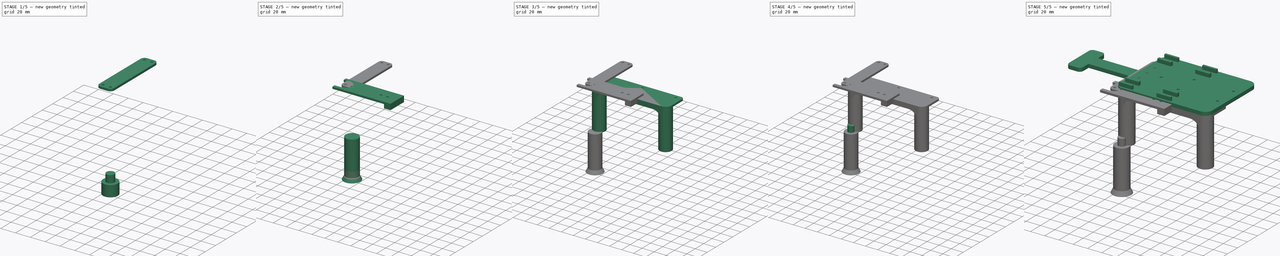
[diagram: build sequence overview — one tinted view per stage of 5, left to right]
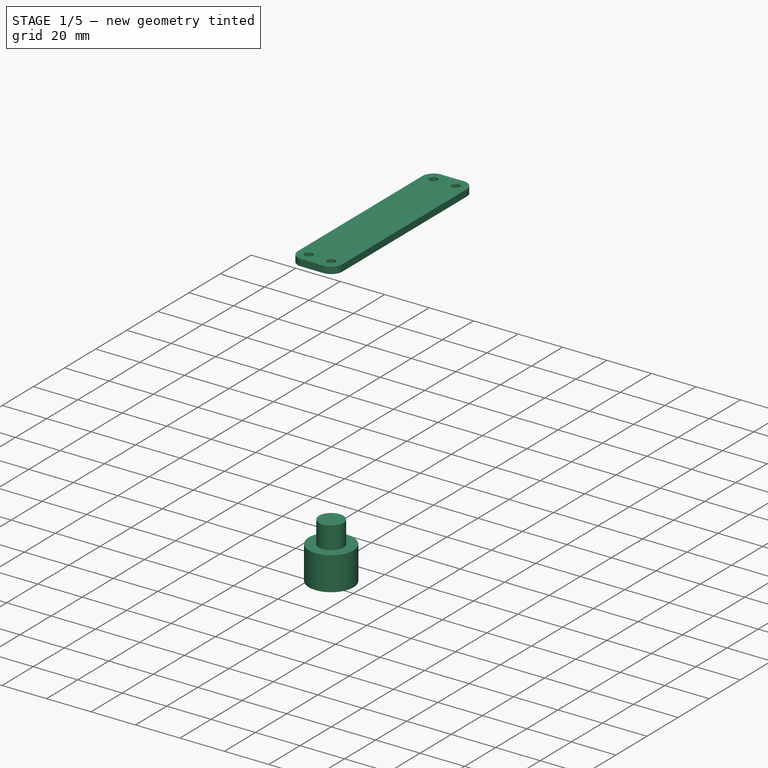
[diagram: stage 1 of 5 — iso view after this stage's code; geometry added in this stage tinted green]
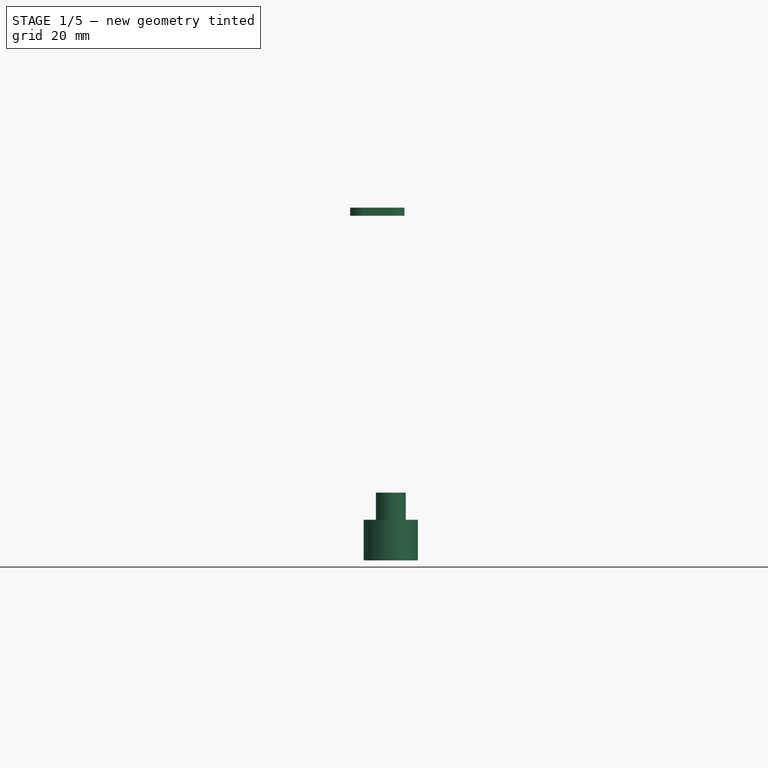
[diagram: stage 1 of 5 — front view after this stage's code; geometry added in this stage tinted green]
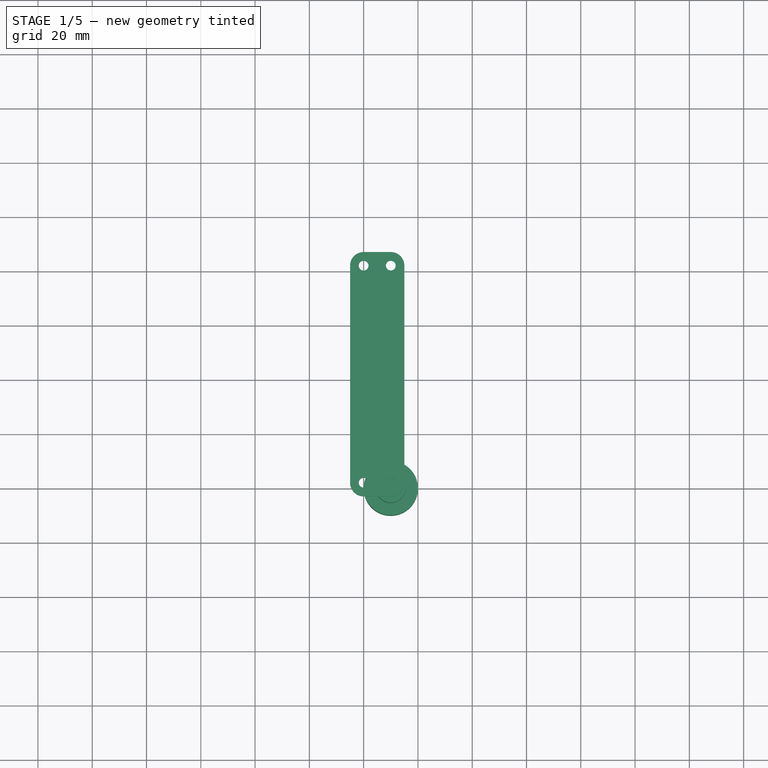
[diagram: stage 1 of 5 — top view after this stage's code; geometry added in this stage tinted green]
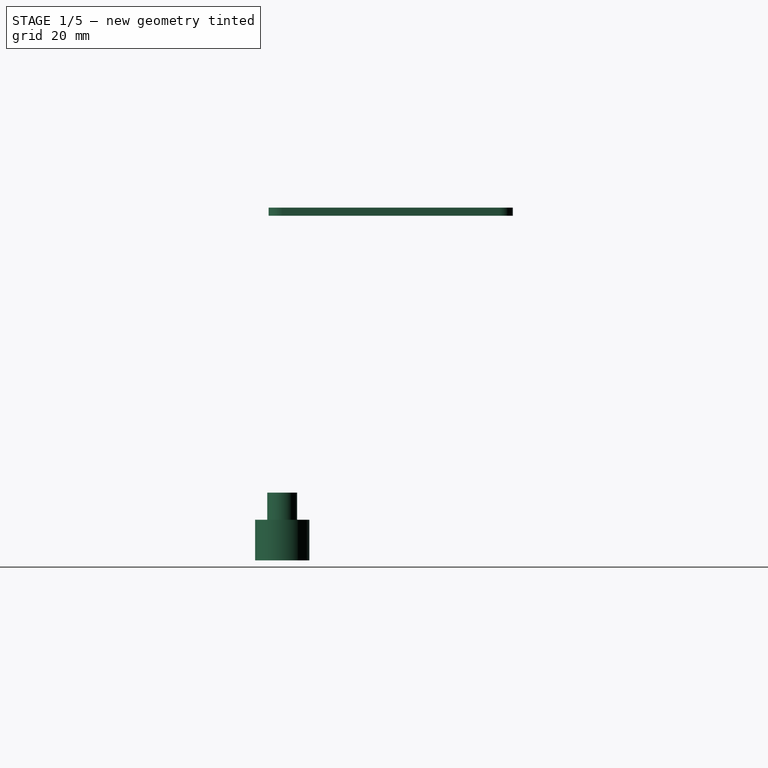
[diagram: stage 1 of 5 — right view after this stage's code; geometry added in this stage tinted green]
FCSTD DOCUMENT  (FreeCAD 1.0R39109 (Git))
Label: Support_long
License: All rights reserved
LicenseURL: http://en.wikipedia.org/wiki/All_rights_reserved
objects: Sketcher::SketchObject×9, PartDesign::Pad×8, PartDesign::Body×7, App::Link×5, PartDesign::AdditiveCylinder×4, PartDesign::SubtractiveCone×3, PartDesign::SubtractiveCylinder×2, PartDesign::Pocket×1, PartDesign::AdditiveCone×1, PartDesign::AdditiveBox×1
note: 85 computed .brp shape members not serialized (recipe doc carries the construction recipe); baked Part::Feature solids carry a one-line shape summary decoded from their .brp

FEATURE [PartDesign::Body] Body004  label="Pusher"
  AllowCompound = false
  Group = -> [Sketch009,Pad007,Box]
  Origin = -> Origin004
  Placement = pos=(120,10,-122) rot=(0,0,1;0rad)
  Tip = -> Box
FEATURE [App::Link] Link004  label="Pusher001"
  LinkPlacement = pos=(120,90,-122) rot=(0,0,1;0rad)
  LinkedObject = -> Body004
  Placement = pos=(120,90,-122) rot=(0,0,1;0rad)
FEATURE [Sketcher::SketchObject] Sketch010
  ArcFitTolerance = 1e-06
  AttachmentSupport = -> [XY_Plane005]
  FullyConstrained = true
  MakeInternals = false
  MapMode = 5
  sketch-geometry (14):
    g0: LineSegment StartX=-5 StartY=80 StartZ=0 EndX=-5 EndY=0 EndZ=0
    g1: LineSegment StartX=-9e-16 StartY=-5 StartZ=0 EndX=10 EndY=-5 EndZ=0
    g2: LineSegment StartX=15 StartY=-1.2e-15 StartZ=0 EndX=15 EndY=80 EndZ=0
    g3: LineSegment StartX=10 StartY=85 StartZ=0 EndX=0 EndY=85 EndZ=0
    g4: ArcOfCircle CenterX=0 CenterY=80 CenterZ=0 NormalX=0 NormalY=0 NormalZ=1 AngleXU=0 Radius=5 StartAngle=1.5708 EndAngle=3.14159
    g5: ArcOfCircle CenterX=0 CenterY=0 CenterZ=0 NormalX=0 NormalY=0 NormalZ=1 AngleXU=0 Radius=5 StartAngle=3.14159 EndAngle=4.71239
    g6: ArcOfCircle CenterX=10 CenterY=0 CenterZ=0 NormalX=0 NormalY=0 NormalZ=1 AngleXU=0 Radius=5 StartAngle=4.71239 EndAngle=6.28319
    g7: ArcOfCircle CenterX=10 CenterY=80 CenterZ=0 NormalX=0 NormalY=0 NormalZ=1 AngleXU=0 Radius=5 StartAngle=1e-16 EndAngle=1.5708
    g8: GeomPoint [constr] X=-5 Y=85 Z=0
    g9: GeomPoint [constr] X=15 Y=-5 Z=0
    g10: Circle CenterX=10 CenterY=80 CenterZ=0 NormalX=0 NormalY=0 NormalZ=1 AngleXU=0 Radius=1.8
    g11: Circle CenterX=0 CenterY=80 CenterZ=0 NormalX=0 NormalY=0 NormalZ=1 AngleXU=0 Radius=1.8
    g12: Circle CenterX=0 CenterY=0 CenterZ=0 NormalX=0 NormalY=0 NormalZ=1 AngleXU=0 Radius=1.8
    g13: Circle CenterX=10 CenterY=0 CenterZ=0 NormalX=0 NormalY=0 NormalZ=1 AngleXU=0 Radius=1.8
  constraints (32):
    c: Tangent(g0,g4) = -1.5708
    c: Tangent(g0,g5) = -1.5708
    c: Tangent(g1,g5) = -1.5708
    c: Tangent(g1,g6) = -1.5708
    c: Tangent(g2,g6) = -1.5708
    c: Tangent(g2,g7) = -1.5708
    c: Tangent(g3,g7) = -1.5708
    c: Tangent(g3,g4) = -1.5708
    c: Vertical(g0)
    c: Vertical(g2)
    c: Horizontal(g1)
    c: Horizontal(g3)
    c: Equal(g4,g5)
    c: Equal(g5,g6)
    c: Equal(g6,g7)
    c: PointOnObject(g8,g0)
    c: PointOnObject(g8,g3)
    c: PointOnObject(g9,g1)
    c: PointOnObject(g9,g2)
    c: Radius(g7) = 5
    c: DistanceX(g4,g7) = 10
    c: DistanceY(g6,g7) = 80
    c: DistanceX(g5) = 0
    c: DistanceY(g5) = 0
    c: Coincident(g10,g7)
    c: Coincident(g11,g4)
    c: Coincident(g12,g5)
    c: Coincident(g13,g6)
    c: Equal(g10,g11)
    c: Equal(g11,g12)
    c: Equal(g12,g13)
    c: Radius(g10) = 1.8
FEATURE [PartDesign::Pad] Pad008
  Direction = (0,0,1)
  Length = 3
  Length2 = 10
  Profile = -> Sketch010
  ReferenceAxis = -> Sketch010 [N_Axis]
  Suppressed = false
  Type = 0
FEATURE [PartDesign::Body] Body005  label="Cross"
  AllowCompound = false
  Group = -> [Sketch010,Pad008]
  Origin = -> Origin005
  Placement = pos=(195,10,-125) rot=(0,0,1;0rad)
  Tip = -> Pad008
FEATURE [PartDesign::AdditiveCylinder] Cylinder003
  Angle = 360
  AttacherType = Attacher::AttachEngine3D
  AttachmentOffset = pos=(10,0,-127) rot=(0,0,1;1.5708rad)
  AttachmentSupport = -> [XY_Plane006]
  FirstAngle = 0
  Height = 15
  MapMode = 5
  Placement = pos=(10,0,-127) rot=(0,0,1;1.5708rad)
  Radius = 10
  SecondAngle = 0
  Suppressed = false
FEATURE [PartDesign::AdditiveCylinder] Cylinder004
  Angle = 360
  AttacherType = Attacher::AttachEngine3D
  AttachmentOffset = pos=(10,0,-112) rot=(0,0,1;0rad)
  AttachmentSupport = -> [XY_Plane006]
  BaseFeature = -> Cylinder003
  FirstAngle = 0
  Height = 10
  MapMode = 5
  Placement = pos=(10,0,-112) rot=(0,0,1;0rad)
  Radius = 5.5
  SecondAngle = 0
  Suppressed = false
FEATURE [PartDesign::SubtractiveCylinder] Cylinder005
  Angle = 360
  AttacherType = Attacher::AttachEngine3D
  AttachmentOffset = pos=(10,0,-127) rot=(0,0,1;0rad)
  AttachmentSupport = -> [XY_Plane006]
  BaseFeature = -> Cylinder004
  FirstAngle = 0
  Height = 11
  MapMode = 5
  Placement = pos=(10,0,-127) rot=(0,0,1;0rad)
  Radius = 5.5
  SecondAngle = 0
  Suppressed = false
FEATURE [PartDesign::Body] Body006  label="Segment"
  AllowCompound = false
  Group = -> [Cylinder003,Cylinder004,Cylinder005]
  Origin = -> Origin006
  Placement = pos=(10,2.2e-15,-1) rot=(0,0,1;1.5708rad)
  Tip = -> Cylinder005
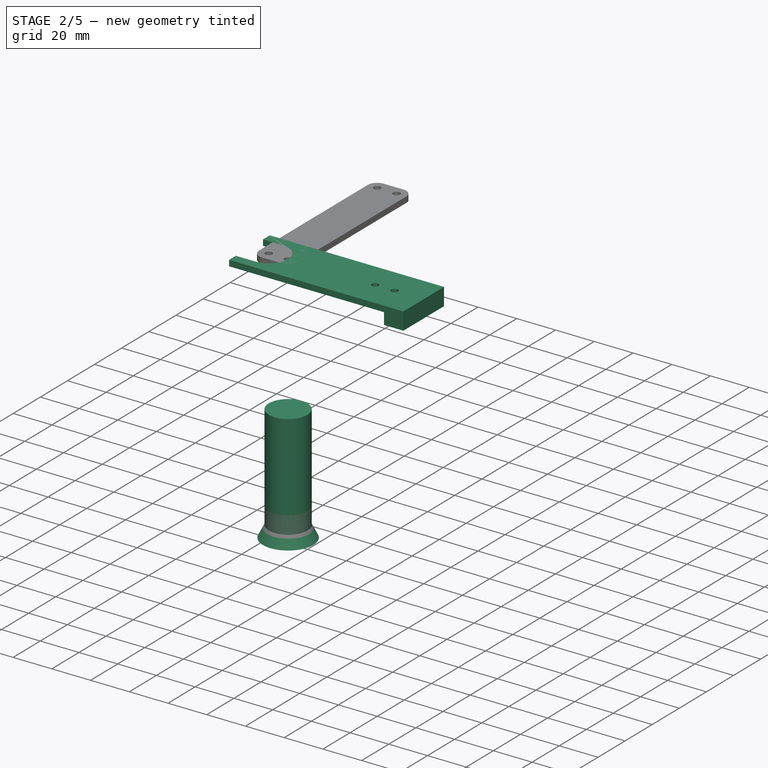
[diagram: stage 2 of 5 — iso view after this stage's code; geometry added in this stage tinted green]
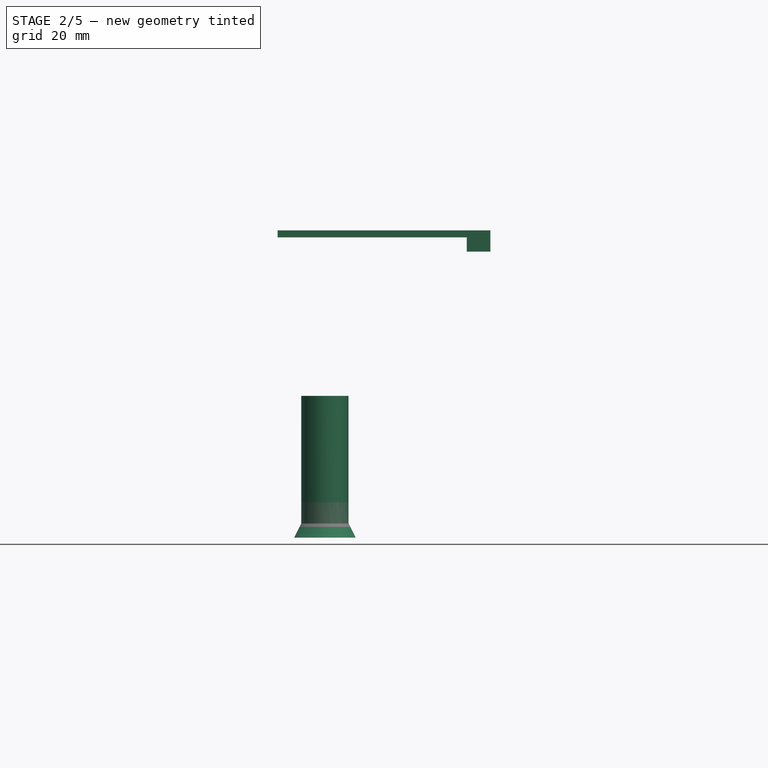
[diagram: stage 2 of 5 — front view after this stage's code; geometry added in this stage tinted green]
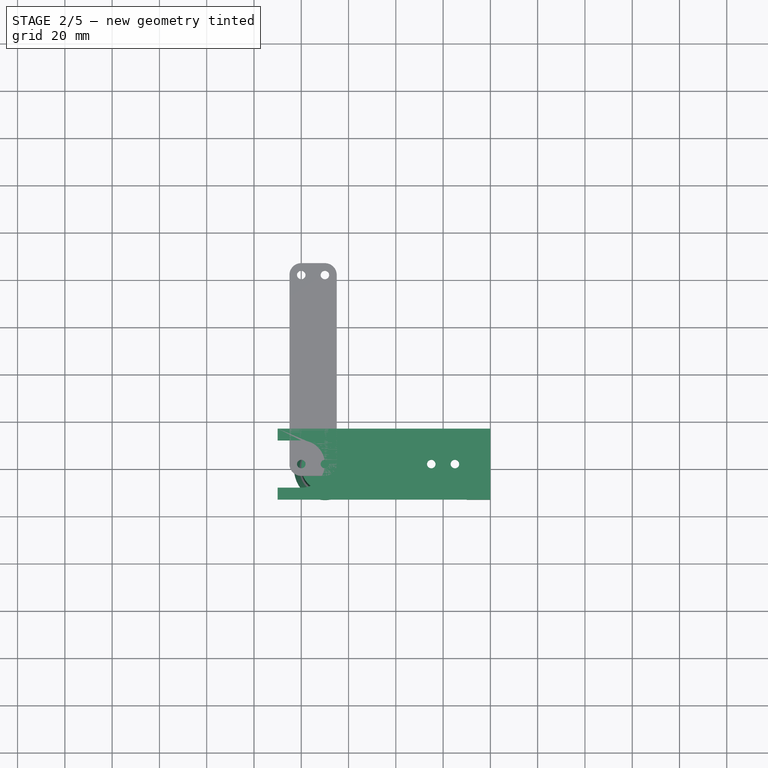
[diagram: stage 2 of 5 — top view after this stage's code; geometry added in this stage tinted green]
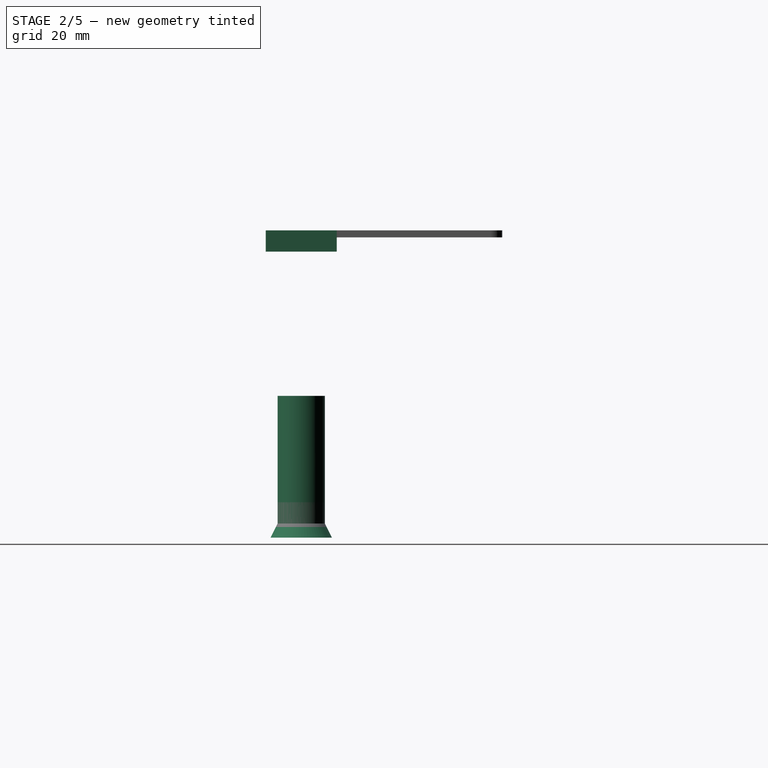
[diagram: stage 2 of 5 — right view after this stage's code; geometry added in this stage tinted green]
FEATURE [PartDesign::Body] Body003  label="Stick"
  AllowCompound = false
  Group = -> [Sketch007,Pad006]
  Origin = -> Origin003
  Tip = -> Pad006
FEATURE [PartDesign::AdditiveCylinder] Cylinder
  Angle = 360
  AttacherType = Attacher::AttachEngine3D
  AttachmentOffset = pos=(10,0,-127) rot=(0,0,1;1.5708rad)
  AttachmentSupport = -> [XY_Plane002]
  FirstAngle = 0
  Height = 60
  MapMode = 5
  Placement = pos=(10,0,-127) rot=(0,0,1;1.5708rad)
  Radius = 10
  SecondAngle = 0
  Suppressed = false
FEATURE [PartDesign::Body] Body001  label="Mid1"
  AllowCompound = false
  Group = -> [Sketch002,Pad002,Sketch003,Pad003,Sketch004,Pad004,Sketch008,Pocket,Cone001,Cone002]
  Origin = -> Origin001
  Tip = -> Cone002
FEATURE [PartDesign::AdditiveCone] Cone003
  Angle = 360
  AttacherType = Attacher::AttachEngine3D
  AttachmentOffset = pos=(10,0,-127) rot=(0,0,1;0rad)
  AttachmentSupport = -> [XY_Plane002]
  BaseFeature = -> Cylinder
  Height = 26
  MapMode = 5
  Placement = pos=(10,0,-127) rot=(0,0,1;0rad)
  Radius1 = 13
  Radius2 = 0
  Suppressed = false
FEATURE [PartDesign::Body] Body002  label="Leg1"
  AllowCompound = false
  Group = -> [Cylinder,Cone003,Cylinder001,Cylinder002,Cone]
  Origin = -> Origin002
  Placement = pos=(10,2.2e-15,-61) rot=(0,0,1;1.5708rad)
  Tip = -> Cone
FEATURE [Sketcher::SketchObject] Sketch009
  ArcFitTolerance = 1e-06
  AttachmentSupport = -> [XY_Plane004]
  FullyConstrained = true
  MakeInternals = false
  MapMode = 5
  sketch-geometry (10):
    g0: LineSegment StartX=-10 StartY=-15 StartZ=0 EndX=80 EndY=-15 EndZ=0
    g1: LineSegment StartX=80 StartY=-15 StartZ=0 EndX=80 EndY=15 EndZ=0
    g2: LineSegment StartX=80 StartY=15 StartZ=0 EndX=-10 EndY=15 EndZ=0
    g3: LineSegment StartX=-10 StartY=15 StartZ=0 EndX=-10 EndY=10 EndZ=0
    g4: LineSegment StartX=-10 StartY=-15 StartZ=0 EndX=-10 EndY=-10 EndZ=0
    g5: ArcOfCircle CenterX=0 CenterY=0 CenterZ=0 NormalX=0 NormalY=0 NormalZ=1 AngleXU=0 Radius=10 StartAngle=4.71239 EndAngle=7.85398
    g6: LineSegment StartX=8.3e-14 StartY=10 StartZ=0 EndX=-10 EndY=10 EndZ=0
    g7: LineSegment StartX=7.81e-14 StartY=-10 StartZ=0 EndX=-10 EndY=-10 EndZ=0
    g8: Circle CenterX=65 CenterY=0 CenterZ=0 NormalX=0 NormalY=0 NormalZ=1 AngleXU=0 Radius=1.8
    g9: Circle CenterX=55 CenterY=0 CenterZ=0 NormalX=0 NormalY=0 NormalZ=1 AngleXU=0 Radius=1.8
  constraints (29):
    c: Coincident(g0,g1)
    c: Coincident(g1,g2)
    c: Vertical(g1)
    c: Horizontal(g0)
    c: Horizontal(g2)
    c: DistanceX(g2,g2) = 90
    c: Coincident(g3,g2)
    c: Vertical(g3)
    c: Coincident(g4,g0)
    c: Vertical(g4)
    c: DistanceX(g5) = 0
    c: DistanceY(g5) = 0
    c: Radius(g5) = 10
    c: Coincident(g6,g3)
    c: Coincident(g7,g4)
    c: Horizontal(g6)
    c: Horizontal(g7)
    c: DistanceX(g4,g3) = 0
    c: Tangent(g6,g5) = -1.5708
    c: Tangent(g7,g5) = 1.5708
    c: DistanceX(g2,g5) = 10
    c: DistanceY(g5,g2) = 15
    c: DistanceY(g0,g5) = 15
    c: PointOnObject(g8,g-1)
    c: PointOnObject(g9,g-1)
    c: Equal(g9,g8)
    c: Radius(g8) = 1.8
    c: DistanceX(g5,g9) = 55
    c: DistanceX(g9,g8) = 10
FEATURE [PartDesign::Pad] Pad007
  Direction = (0,0,1)
  Length = 3
  Length2 = 10
  Profile = -> Sketch009
  ReferenceAxis = -> Sketch009 [N_Axis]
  Suppressed = false
  Type = 0
FEATURE [PartDesign::AdditiveBox] Box
  AttacherType = Attacher::AttachEngine3D
  AttachmentOffset = pos=(70,-15,-6) rot=(0,0,1;0rad)
  AttachmentSupport = -> [XY_Plane004]
  BaseFeature = -> Pad007
  Height = 6
  Length = 10
  MapMode = 5
  Placement = pos=(70,-15,-6) rot=(0,0,1;0rad)
  Suppressed = false
  Width = 30
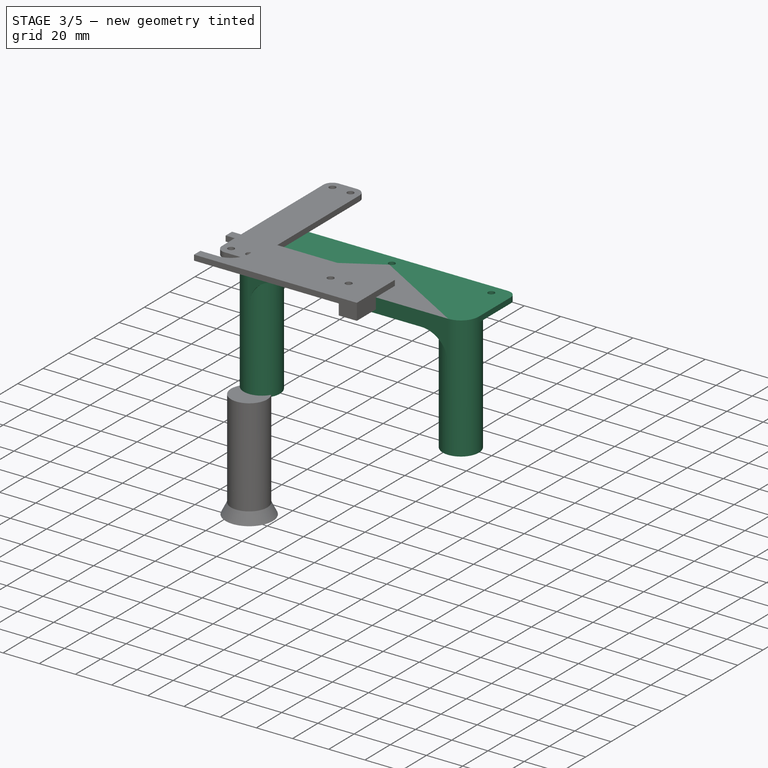
[diagram: stage 3 of 5 — iso view after this stage's code; geometry added in this stage tinted green]
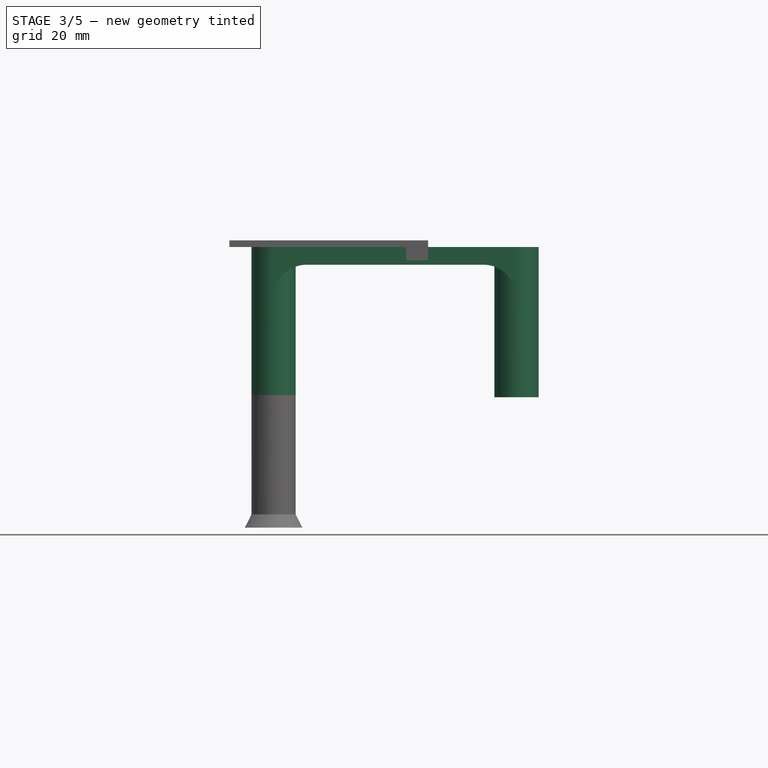
[diagram: stage 3 of 5 — front view after this stage's code; geometry added in this stage tinted green]
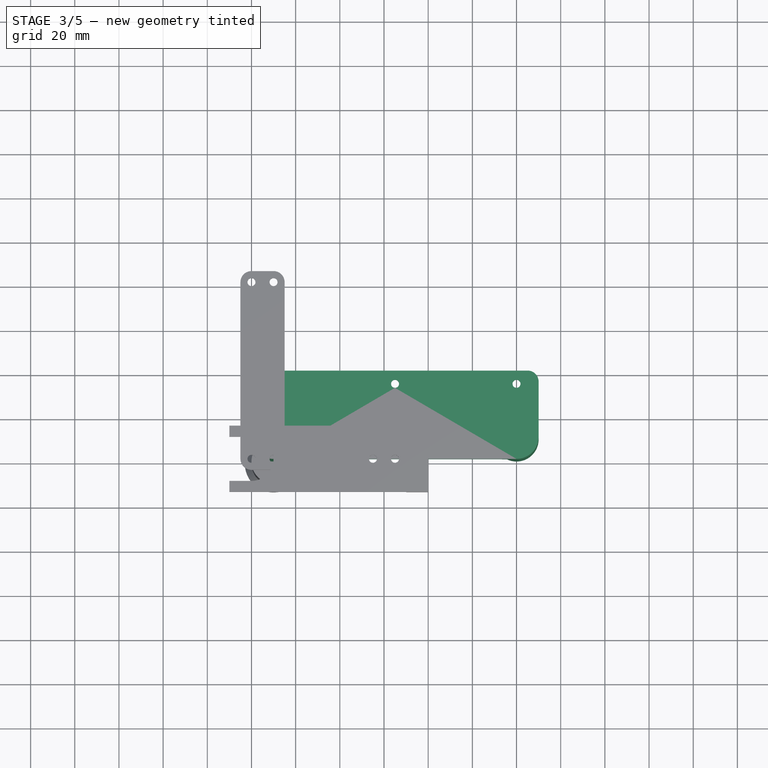
[diagram: stage 3 of 5 — top view after this stage's code; geometry added in this stage tinted green]
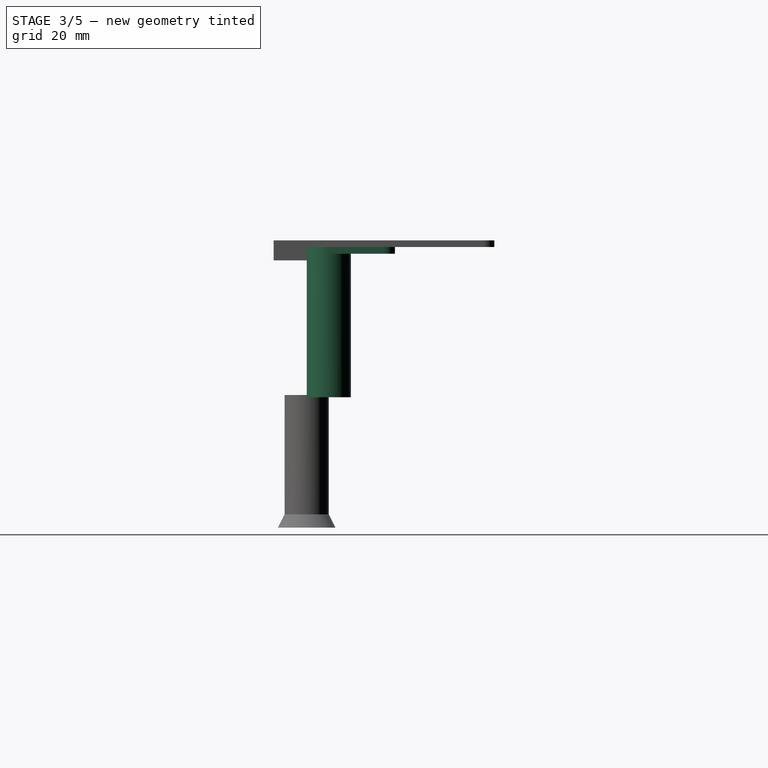
[diagram: stage 3 of 5 — right view after this stage's code; geometry added in this stage tinted green]
FEATURE [PartDesign::Body] Body  label="Top"
  AllowCompound = false
  Group = -> [Sketch,Pad,Sketch001,Pad001]
  Origin = -> Origin
  Tip = -> Pad001
FEATURE [Sketcher::SketchObject] Sketch002
  ArcFitTolerance = 0
  AttachmentSupport = -> [XY_Plane001]
  FullyConstrained = true
  MakeInternals = false
  MapMode = 5
  sketch-geometry (16):
    g0: LineSegment [constr] StartX=0 StartY=40 StartZ=0 EndX=130 EndY=40 EndZ=0
    g1: LineSegment [constr] StartX=130 StartY=40 StartZ=0 EndX=130 EndY=10 EndZ=0
    g2: LineSegment StartX=120 StartY=0 StartZ=0 EndX=10 EndY=0 EndZ=0
    g3: LineSegment [constr] StartX=0 StartY=10 StartZ=0 EndX=0 EndY=40 EndZ=0
    g4: Circle CenterX=120 CenterY=34 CenterZ=0 NormalX=0 NormalY=0 NormalZ=1 AngleXU=0 Radius=1.8
    g5: Circle CenterX=10 CenterY=34 CenterZ=0 NormalX=0 NormalY=0 NormalZ=1 AngleXU=0 Radius=1.8
    g6: LineSegment [constr] StartX=120 StartY=34 StartZ=0 EndX=130 EndY=40 EndZ=0
    g7: LineSegment [constr] StartX=10 StartY=34 StartZ=0 EndX=0 EndY=40 EndZ=0
    g8: ArcOfCircle CenterX=120 CenterY=10 CenterZ=0 NormalX=0 NormalY=0 NormalZ=1 AngleXU=0 Radius=10 StartAngle=4.71239 EndAngle=6.28319
    g9: ArcOfCircle CenterX=10 CenterY=10 CenterZ=0 NormalX=0 NormalY=0 NormalZ=1 AngleXU=0 Radius=10 StartAngle=3.14159 EndAngle=4.71239
    g10: LineSegment StartX=0 StartY=35 StartZ=0 EndX=0 EndY=10 EndZ=0
    g11: LineSegment StartX=130 StartY=10 StartZ=0 EndX=130 EndY=35 EndZ=0
    g12: LineSegment StartX=125 StartY=40 StartZ=0 EndX=5 EndY=40 EndZ=0
    g13: ArcOfCircle CenterX=5 CenterY=35 CenterZ=0 NormalX=0 NormalY=0 NormalZ=1 AngleXU=0 Radius=5 StartAngle=1.5708 EndAngle=3.14159
    g14: ArcOfCircle CenterX=125 CenterY=35 CenterZ=0 NormalX=0 NormalY=0 NormalZ=1 AngleXU=0 Radius=5 StartAngle=5e-16 EndAngle=1.5708
    g15: Circle CenterX=65 CenterY=34 CenterZ=0 NormalX=0 NormalY=0 NormalZ=1 AngleXU=0 Radius=1.8
  constraints (51):
    c: Coincident(g0,g1)
    c: Coincident(g3,g0)
    c: Horizontal(g0)
    c: Horizontal(g2)
    c: Vertical(g1)
    c: Vertical(g3)
    c: DistanceY(g2) = 0
    c: DistanceY(g5,g4) = 0
    c: Equal(g5,g4)
    c: Radius(g5) = 1.8
    c: Coincident(g6,g4)
    c: Coincident(g6,g0)
    c: Coincident(g7,g5)
    c: Coincident(g7,g0)
    c: Equal(g7,g6)
    c: DistanceX(g5,g4) = 110
    c: DistanceY(g2,g5) = 34
    c: DistanceY(g2,g0) = 40
    c: Coincident(g8,g1)
    c: Coincident(g8,g2)
    c: Radius(g8) = 10
    c: DistanceX(g8,g2) = 0
    c: DistanceY(g1,g8) = 0
    c: DistanceX(g0,g-1) = 0
    c: Coincident(g9,g3)
    c: Coincident(g9,g2)
    c: DistanceX(g2,g9) = 0
    c: DistanceY(g3,g9) = 0
    c: Equal(g9,g8)
    c: DistanceX(g-1,g0) = 130
    c: Vertical(g10)
    c: Vertical(g11)
    c: Horizontal(g12)
    c: DistanceY(g12,g0) = 0
    c: DistanceX(g0,g11) = 0
    c: DistanceX(g10,g0) = 0
    c: DistanceY(g3,g10) = 0
    c: Coincident(g13,g12)
    c: Coincident(g13,g10)
    c: Coincident(g14,g12)
    c: Coincident(g14,g11)
    c: DistanceY(g1,g11) = 0
    c: DistanceY(g14,g11) = 0
    c: DistanceY(g13,g10) = 0
    c: DistanceX(g12,g13) = 0
    c: DistanceX(g14,g12) = 0
    c: Equal(g13,g14)
    c: Radius(g13) = 5
    c: DistanceY(g15,g4) = 0
    c: Equal(g15,g5)
    c: DistanceX(g15,g4) = 55
FEATURE [PartDesign::Pad] Pad002
  Direction = (0,0,1)
  Length = 3
  Length2 = 10
  Profile = -> Sketch002
  ReferenceAxis = -> Sketch002 [N_Axis]
  Reversed = true
  Suppressed = false
  Type = 0
FEATURE [App::Link] Link  label="Mid2"
  LinkPlacement = pos=(130,100,0) rot=(0,0,1;3.14159rad)
  LinkedObject = -> Body001
  Placement = pos=(130,100,0) rot=(0,0,1;3.14159rad)
FEATURE [Sketcher::SketchObject] Sketch003
  ArcFitTolerance = 0
  AttachmentOffset = pos=(0,0,-3) rot=(0,0,1;0rad)
  AttachmentSupport = -> [XY_Plane001]
  FullyConstrained = true
  MakeInternals = false
  MapMode = 5
  Placement = pos=(0,0,-3) rot=(0,0,1;0rad)
  sketch-geometry (2):
    g0: Circle CenterX=10 CenterY=10 CenterZ=0 NormalX=0 NormalY=0 NormalZ=1 AngleXU=0 Radius=10
    g1: Circle CenterX=120 CenterY=10 CenterZ=0 NormalX=0 NormalY=0 NormalZ=1 AngleXU=0 Radius=10
  constraints (6):
    c: Tangent(g0,g-1)
    c: Radius(g0) = 10
    c: DistanceY(g0,g1) = 0
    c: Tangent(g1,g-1)
    c: DistanceX(g0,g1) = 110
    c: Tangent(g0,g-2)
FEATURE [PartDesign::Pad] Pad003
  BaseFeature = -> Pad002
  Direction = (0,0,1)
  Length = 65
  Length2 = 10
  Profile = -> Sketch003
  ReferenceAxis = -> Sketch003 [N_Axis]
  Reversed = true
  Suppressed = false
  Type = 0
FEATURE [Sketcher::SketchObject] Sketch004
  ArcFitTolerance = 0
  AttachmentSupport = -> [XZ_Plane001]
  FullyConstrained = true
  MakeInternals = false
  MapMode = 5
  Placement = pos=(0,0,0) rot=(1,0,0;1.5708rad)
  sketch-geometry (6):
    g0: LineSegment StartX=10 StartY=-3 StartZ=0 EndX=120 EndY=-3 EndZ=0
    g1: LineSegment StartX=120 StartY=-3 StartZ=0 EndX=120 EndY=-23 EndZ=0
    g2: LineSegment StartX=10 StartY=-23 StartZ=0 EndX=10 EndY=-3 EndZ=0
    g3: ArcOfCircle CenterX=25 CenterY=-23 CenterZ=0 NormalX=0 NormalY=0 NormalZ=1 AngleXU=0 Radius=15 StartAngle=1.5708 EndAngle=3.14159
    g4: ArcOfCircle CenterX=105 CenterY=-23 CenterZ=0 NormalX=0 NormalY=0 NormalZ=1 AngleXU=0 Radius=15 StartAngle=0 EndAngle=1.5708
    g5: LineSegment StartX=25 StartY=-8 StartZ=0 EndX=105 EndY=-8 EndZ=0
  constraints (18):
    c: Coincident(g0,g1)
    c: Coincident(g2,g0)
    c: Horizontal(g0)
    c: Vertical(g1)
    c: Vertical(g2)
    c: DistanceY(g2,g2) = 20
    c: DistanceX(g0,g0) = 110
    c: DistanceX(g0) = 10
    c: DistanceY(g0) = -3
    c: Coincident(g3,g2)
    c: Coincident(g4,g1)
    c: Horizontal(g5)
    c: DistanceY(g2,g3) = 0
    c: DistanceY(g4,g1) = 0
    c: Radius(g4) = 15
    c: DistanceY(g3,g4) = 0
    c: Tangent(g5,g4) = 1.5708
    c: Tangent(g5,g3) = 1.5708
FEATURE [PartDesign::Pad] Pad004
  BaseFeature = -> Pad003
  Direction = (0,-1,2e-16)
  Length = 20
  Length2 = 10
  Profile = -> Sketch004
  ReferenceAxis = -> Sketch004 [N_Axis]
  Reversed = true
  Suppressed = false
  Type = 0
FEATURE [Sketcher::SketchObject] Sketch008
  ArcFitTolerance = 0
  AttachmentOffset = pos=(0,0,-68) rot=(0,0,1;0rad)
  AttachmentSupport = -> [XY_Plane001]
  FullyConstrained = true
  MakeInternals = false
  MapMode = 5
  Placement = pos=(0,0,-68) rot=(0,0,1;0rad)
  sketch-geometry (2):
    g0: Circle CenterX=10 CenterY=10 CenterZ=0 NormalX=0 NormalY=0 NormalZ=1 AngleXU=0 Radius=6
    g1: Circle CenterX=120 CenterY=10 CenterZ=0 NormalX=0 NormalY=0 NormalZ=1 AngleXU=0 Radius=6
  constraints (6):
    c: DistanceY(g0,g1) = 0
    c: DistanceX(g0,g1) = 110
    c: DistanceX(g0) = 10
    c: DistanceY(g0) = 10
    c: Radius(g0) = 6
    c: Equal(g0,g1)
FEATURE [PartDesign::Pocket] Pocket
  BaseFeature = -> Pad004
  Direction = (0,0,-1)
  Length = 39
  Length2 = 5
  Profile = -> Sketch008
  ReferenceAxis = -> Sketch008 [N_Axis]
  Reversed = true
  Suppressed = false
  Type = 0
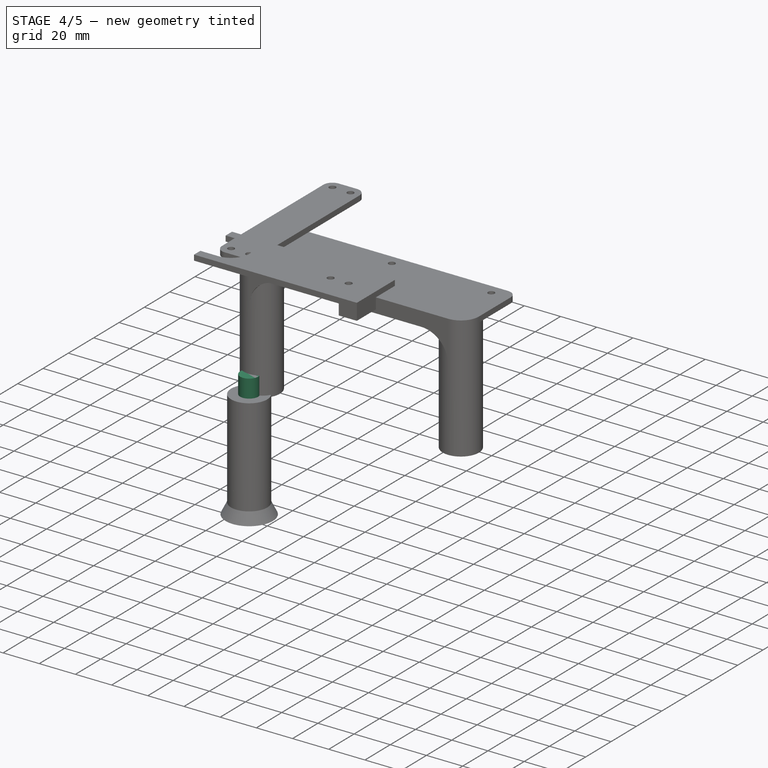
[diagram: stage 4 of 5 — iso view after this stage's code; geometry added in this stage tinted green]
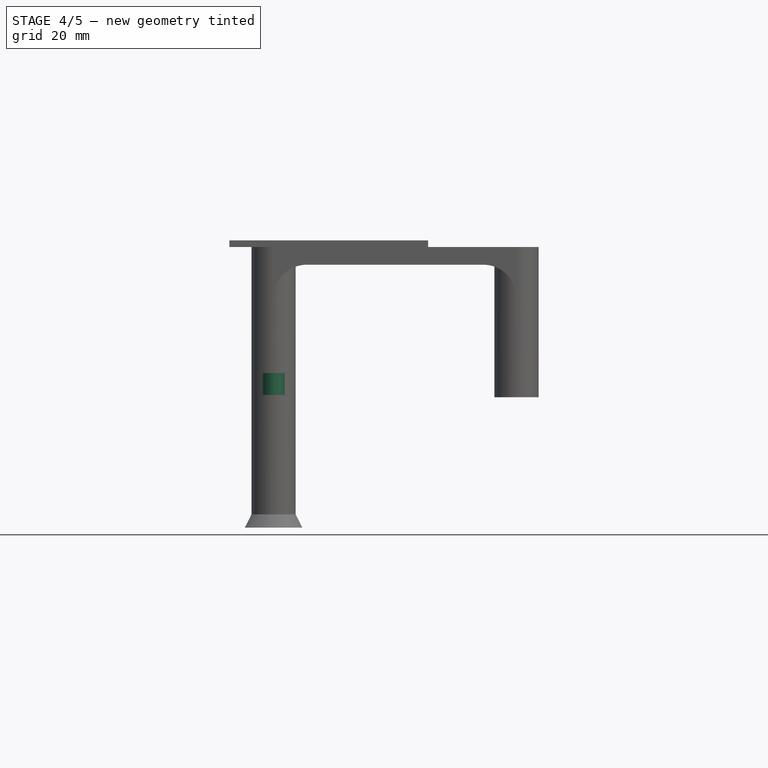
[diagram: stage 4 of 5 — front view after this stage's code; geometry added in this stage tinted green]
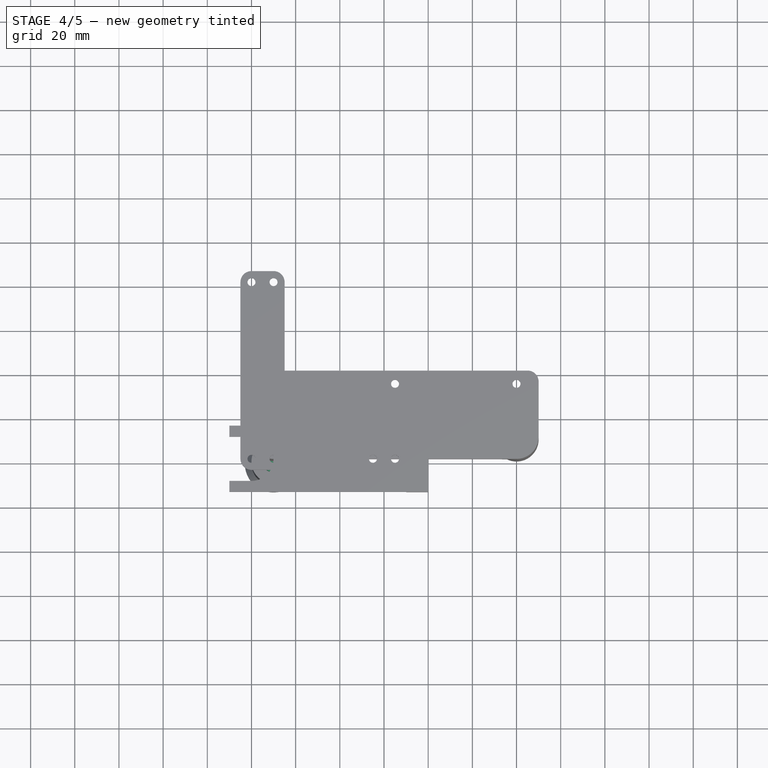
[diagram: stage 4 of 5 — top view after this stage's code; geometry added in this stage tinted green]
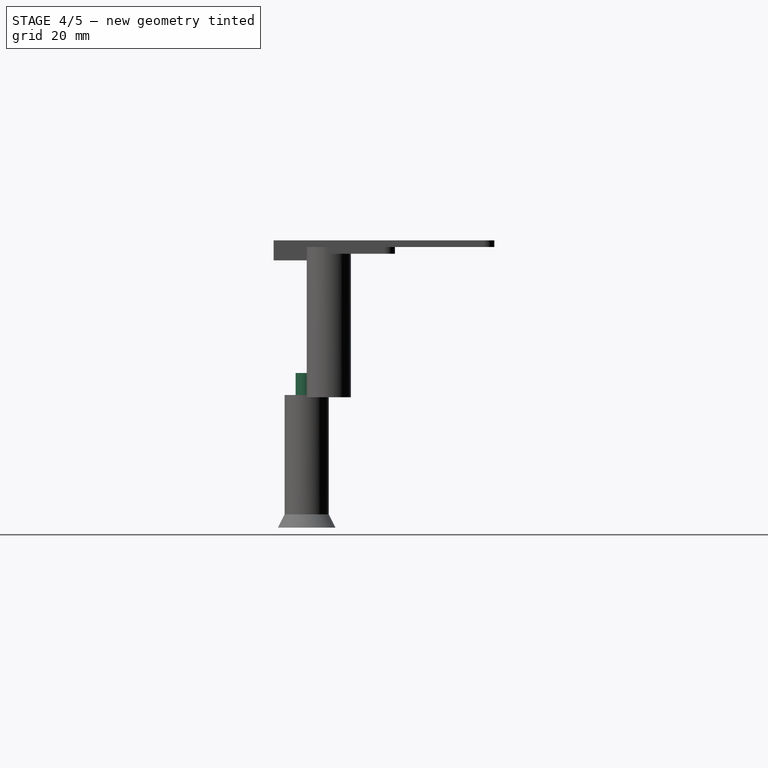
[diagram: stage 4 of 5 — right view after this stage's code; geometry added in this stage tinted green]
FEATURE [PartDesign::SubtractiveCone] Cone001
  Angle = 360
  AttacherType = Attacher::AttachEngine3D
  AttachmentOffset = pos=(10,10,-29) rot=(0,0,1;0rad)
  AttachmentSupport = -> [XY_Plane001]
  BaseFeature = -> Pocket
  Height = 10
  MapMode = 5
  Placement = pos=(10,10,-29) rot=(0,0,1;0rad)
  Radius1 = 6
  Radius2 = 0
  Suppressed = false
FEATURE [PartDesign::SubtractiveCone] Cone002
  Angle = 360
  AttacherType = Attacher::AttachEngine3D
  AttachmentOffset = pos=(120,10,-29) rot=(0,0,1;0rad)
  AttachmentSupport = -> [XY_Plane001]
  BaseFeature = -> Cone001
  Height = 10
  MapMode = 5
  Placement = pos=(120,10,-29) rot=(0,0,1;0rad)
  Radius1 = 6
  Radius2 = 0
  Suppressed = false
FEATURE [PartDesign::AdditiveCylinder] Cylinder001
  Angle = 360
  AttacherType = Attacher::AttachEngine3D
  AttachmentOffset = pos=(10,0,-67) rot=(0,0,1;0rad)
  AttachmentSupport = -> [XY_Plane002]
  BaseFeature = -> Cone003
  FirstAngle = 0
  Height = 10
  MapMode = 5
  Placement = pos=(10,0,-67) rot=(0,0,1;0rad)
  Radius = 5
  SecondAngle = 0
  Suppressed = false
FEATURE [PartDesign::SubtractiveCylinder] Cylinder002
  Angle = 360
  AttacherType = Attacher::AttachEngine3D
  AttachmentOffset = pos=(10,0,-127) rot=(0,0,1;0rad)
  AttachmentSupport = -> [XY_Plane002]
  BaseFeature = -> Cylinder001
  FirstAngle = 0
  Height = 38
  MapMode = 5
  Placement = pos=(10,0,-127) rot=(0,0,1;0rad)
  Radius = 6
  SecondAngle = 0
  Suppressed = false
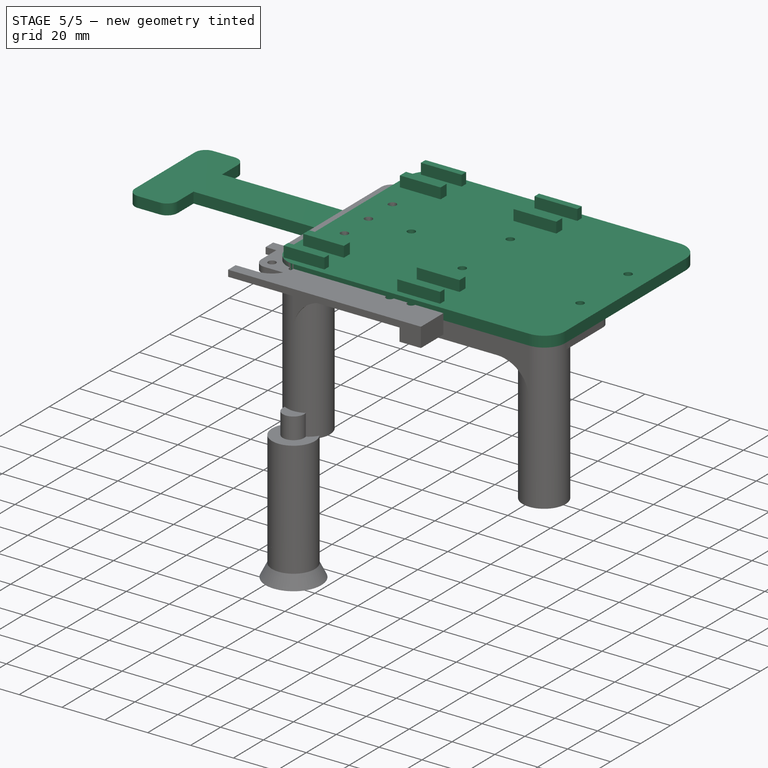
[diagram: stage 5 of 5 — iso view after this stage's code; geometry added in this stage tinted green]
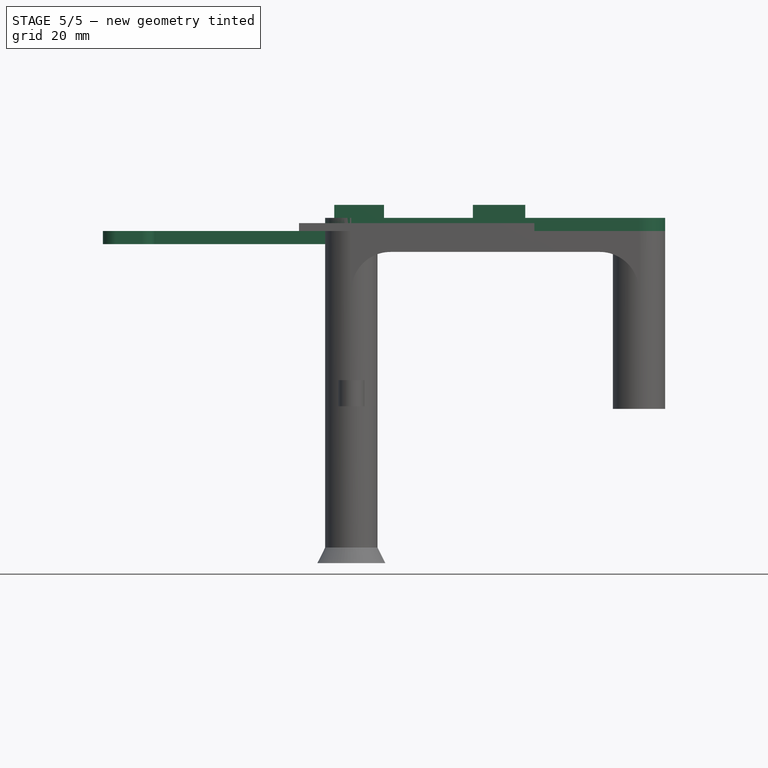
[diagram: stage 5 of 5 — front view after this stage's code; geometry added in this stage tinted green]
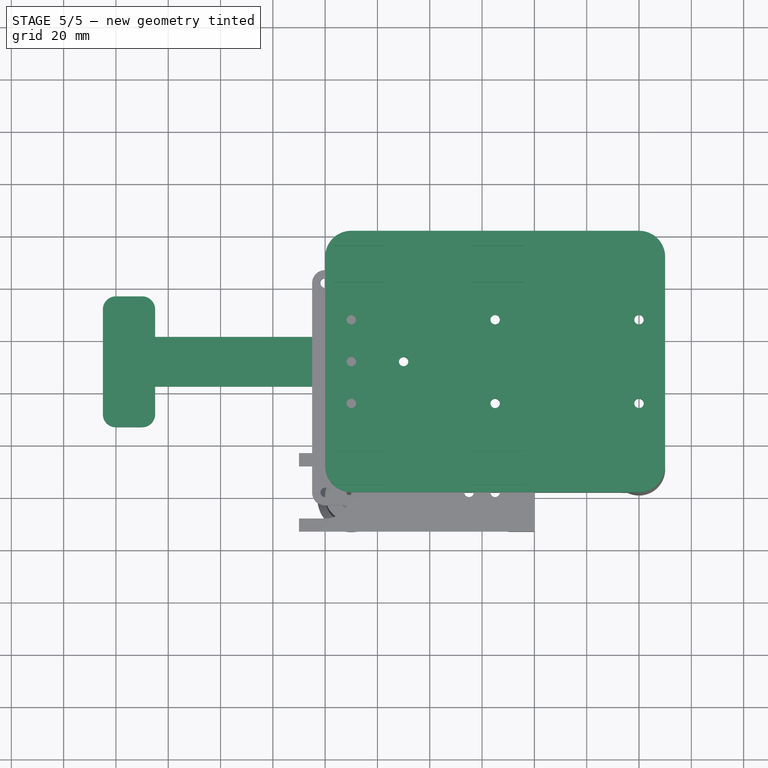
[diagram: stage 5 of 5 — top view after this stage's code; geometry added in this stage tinted green]
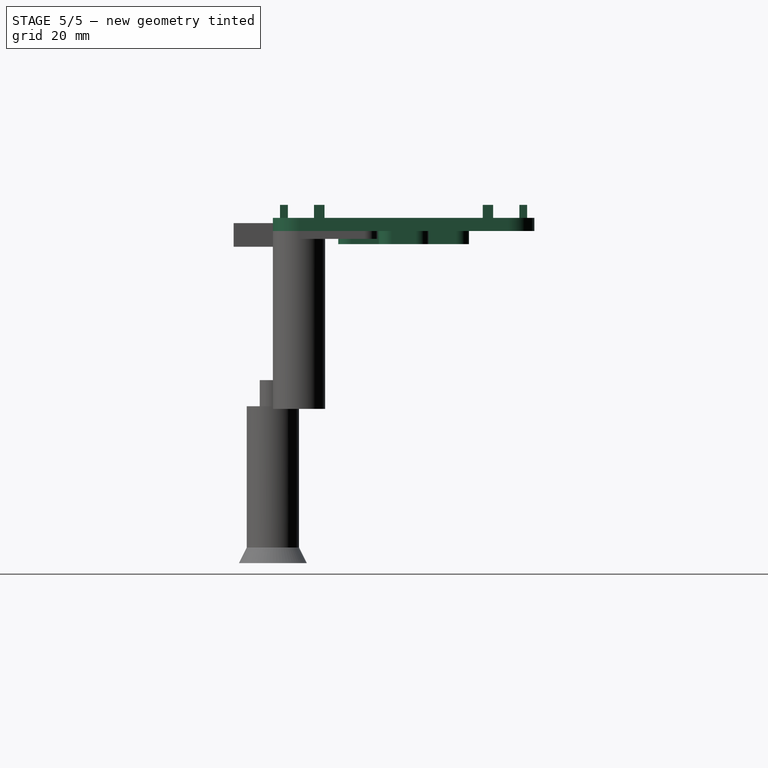
[diagram: stage 5 of 5 — right view after this stage's code; geometry added in this stage tinted green]
FEATURE [Sketcher::SketchObject] Sketch
  ArcFitTolerance = 0
  AttachmentSupport = -> [XY_Plane]
  FullyConstrained = true
  MakeInternals = false
  MapMode = 5
  sketch-geometry (29):
    g0: LineSegment [constr] StartX=0 StartY=100 StartZ=0 EndX=130 EndY=100 EndZ=0
    g1: LineSegment [constr] StartX=130 StartY=100 StartZ=0 EndX=130 EndY=0 EndZ=0
    g2: LineSegment [constr] StartX=130 StartY=0 StartZ=0 EndX=0 EndY=0 EndZ=0
    g3: LineSegment [constr] StartX=0 StartY=0 StartZ=0 EndX=0 EndY=100 EndZ=0
    g4: LineSegment [constr] StartX=10 StartY=66 StartZ=0 EndX=120 EndY=66 EndZ=0
    g5: LineSegment [constr] StartX=120 StartY=66 StartZ=0 EndX=120 EndY=34 EndZ=0
    g6: LineSegment [constr] StartX=120 StartY=34 StartZ=0 EndX=10 EndY=34 EndZ=0
    g7: LineSegment [constr] StartX=10 StartY=34 StartZ=0 EndX=10 EndY=66 EndZ=0
    g8: LineSegment [constr] StartX=130 StartY=100 StartZ=0 EndX=120 EndY=66 EndZ=0
    g9: LineSegment [constr] StartX=120 StartY=34 StartZ=0 EndX=130 EndY=0 EndZ=0
    g10: LineSegment [constr] StartX=10 StartY=66 StartZ=0 EndX=0 EndY=100 EndZ=0
    g11: Circle CenterX=120 CenterY=66 CenterZ=0 NormalX=0 NormalY=0 NormalZ=1 AngleXU=0 Radius=1.8
    g12: Circle CenterX=120 CenterY=34 CenterZ=0 NormalX=0 NormalY=0 NormalZ=1 AngleXU=0 Radius=1.8
    g13: Circle CenterX=10 CenterY=34 CenterZ=0 NormalX=0 NormalY=0 NormalZ=1 AngleXU=0 Radius=1.8
    g14: Circle CenterX=10 CenterY=66 CenterZ=0 NormalX=0 NormalY=0 NormalZ=1 AngleXU=0 Radius=1.8
    g15: Circle CenterX=10 CenterY=50 CenterZ=0 NormalX=0 NormalY=0 NormalZ=1 AngleXU=0 Radius=1.8
    g16: Circle CenterX=30 CenterY=50 CenterZ=0 NormalX=0 NormalY=0 NormalZ=1 AngleXU=0 Radius=1.8
    g17: LineSegment [constr] StartX=0 StartY=100 StartZ=0 EndX=10 EndY=50 EndZ=0
    g18: LineSegment [constr] StartX=10 StartY=50 StartZ=0 EndX=0 EndY=0 EndZ=0
    g19: LineSegment StartX=0 StartY=90 StartZ=0 EndX=0 EndY=10 EndZ=0
    g20: LineSegment StartX=10 StartY=0 StartZ=0 EndX=120 EndY=0 EndZ=0
    g21: LineSegment StartX=130 StartY=10 StartZ=0 EndX=130 EndY=90 EndZ=0
    g22: LineSegment StartX=120 StartY=100 StartZ=0 EndX=10 EndY=100 EndZ=0
    g23: ArcOfCircle CenterX=10 CenterY=90 CenterZ=0 NormalX=0 NormalY=0 NormalZ=1 AngleXU=0 Radius=10 StartAngle=1.5708 EndAngle=3.14159
    g24: ArcOfCircle CenterX=120 CenterY=90 CenterZ=0 NormalX=0 NormalY=0 NormalZ=1 AngleXU=0 Radius=10 StartAngle=0 EndAngle=1.5708
    g25: ArcOfCircle CenterX=120 CenterY=10 CenterZ=0 NormalX=0 NormalY=0 NormalZ=1 AngleXU=0 Radius=10 StartAngle=4.71239 EndAngle=6.28319
    g26: ArcOfCircle CenterX=10 CenterY=10 CenterZ=0 NormalX=0 NormalY=0 NormalZ=1 AngleXU=0 Radius=10 StartAngle=3.14159 EndAngle=4.71239
    g27: Circle CenterX=65 CenterY=66 CenterZ=0 NormalX=0 NormalY=0 NormalZ=1 AngleXU=0 Radius=1.8
    g28: Circle CenterX=65 CenterY=34 CenterZ=0 NormalX=0 NormalY=0 NormalZ=1 AngleXU=0 Radius=1.8
  constraints (82):
    c: Coincident(g0,g1)
    c: Coincident(g1,g2)
    c: Coincident(g2,g3)
    c: Coincident(g3,g0)
    c: Horizontal(g0)
    c: Horizontal(g2)
    c: Vertical(g1)
    c: Vertical(g3)
    c: DistanceY(g1,g1) = 100
    c: DistanceX(g2,g2) = 130
    c: DistanceX(g2) = 0
    c: DistanceY(g2) = 0
    c: Coincident(g4,g5)
    c: Coincident(g5,g6)
    c: Coincident(g6,g7)
    c: Coincident(g7,g4)
    c: Horizontal(g4)
    c: Horizontal(g6)
    c: Vertical(g5)
    c: Vertical(g7)
    c: DistanceX(g4,g4) = 110
    c: DistanceY(g7,g7) = 32
    c: Coincident(g8,g0)
    c: Coincident(g8,g4)
    c: Coincident(g9,g5)
    c: Coincident(g9,g1)
    c: Coincident(g10,g4)
    c: Coincident(g10,g0)
    c: Equal(g10,g8)
    c: Equal(g8,g9)
    c: Coincident(g11,g4)
    c: Coincident(g12,g5)
    c: Coincident(g13,g6)
    c: Coincident(g14,g4)
    c: Equal(g14,g13)
    c: Equal(g13,g11)
    c: Equal(g11,g12)
    c: Radius(g14) = 1.8
    c: DistanceY(g16,g15) = 0
    c: DistanceX(g15,g16) = 20
    c: DistanceX(g2,g15) = 10
    c: Coincident(g17,g0)
    c: Coincident(g17,g15)
    c: Coincident(g18,g15)
    c: Coincident(g18,g2)
    c: Equal(g18,g17)
    c: Equal(g16,g15)
    c: Radius(g16) = 1.8
    c: Vertical(g19)
    c: Vertical(g21)
    c: Horizontal(g20)
    c: Horizontal(g22)
    c: Coincident(g23,g22)
    c: Coincident(g23,g19)
    c: Coincident(g24,g22)
    c: Coincident(g24,g21)
    c: Coincident(g25,g21)
    c: Coincident(g25,g20)
    c: Coincident(g26,g19)
    c: Coincident(g26,g20)
    c: DistanceX(g19,g2) = 0
    c: DistanceX(g19,g21) = 130
    c: DistanceY(g20,g2) = 0
    c: DistanceY(g20,g22) = 100
    c: DistanceX(g22,g23) = 0
    c: DistanceX(g24,g22) = 0
    c: DistanceX(g20,g25) = 0
    c: DistanceX(g20,g26) = 0
    c: DistanceY(g23,g19) = 0
    c: DistanceY(g24,g21) = 0
    c: DistanceY(g21,g25) = 0
    c: DistanceY(g19,g26) = 0
    c: Equal(g23,g24)
    c: Equal(g24,g25)
    c: Equal(g25,g26)
    c: Radius(g23) = 10
    c: DistanceY(g27,g4) = 0
    c: DistanceY(g5,g28) = 0
    c: DistanceX(g27,g28) = 0
    c: Equal(g27,g28)
    c: Equal(g28,g14)
    c: DistanceX(g27,g4) = 55
FEATURE [PartDesign::Pad] Pad
  Direction = (0,0,1)
  Length = 5
  Length2 = 10
  Profile = -> Sketch
  ReferenceAxis = -> Sketch [N_Axis]
  Suppressed = false
  Type = 0
FEATURE [Sketcher::SketchObject] Sketch001
  ArcFitTolerance = 0
  AttachmentOffset = pos=(0,0,5) rot=(0,0,1;0rad)
  AttachmentSupport = -> [XY_Plane]
  FullyConstrained = true
  MakeInternals = false
  MapMode = 5
  Placement = pos=(0,0,5) rot=(0,0,1;0rad)
  sketch-geometry (39):
    g0: LineSegment StartX=56.5 StartY=84.25 StartZ=0 EndX=76.5 EndY=84.25 EndZ=0
    g1: LineSegment StartX=76.5 StartY=84.25 StartZ=0 EndX=76.5 EndY=80.25 EndZ=0
    g2: LineSegment StartX=76.5 StartY=80.25 StartZ=0 EndX=56.5 EndY=80.25 EndZ=0
    g3: LineSegment StartX=56.5 StartY=80.25 StartZ=0 EndX=56.5 EndY=84.25 EndZ=0
    g4: LineSegment StartX=56.5 StartY=19.75 StartZ=0 EndX=76.5 EndY=19.75 EndZ=0
    g5: LineSegment StartX=76.5 StartY=19.75 StartZ=0 EndX=76.5 EndY=15.75 EndZ=0
    g6: LineSegment StartX=76.5 StartY=15.75 StartZ=0 EndX=56.5 EndY=15.75 EndZ=0
    g7: LineSegment StartX=56.5 StartY=15.75 StartZ=0 EndX=56.5 EndY=19.75 EndZ=0
    g8: LineSegment [constr] StartX=80 StartY=100 StartZ=0 EndX=0 EndY=100 EndZ=0
    g9: LineSegment [constr] StartX=0 StartY=100 StartZ=0 EndX=0 EndY=0 EndZ=0
    g10: LineSegment [constr] StartX=0 StartY=0 StartZ=0 EndX=80 EndY=0 EndZ=0
    g11: LineSegment [constr] StartX=80 StartY=0 StartZ=0 EndX=80 EndY=100 EndZ=0
    g12: LineSegment StartX=3.5 StartY=84.25 StartZ=0 EndX=22.5 EndY=84.25 EndZ=0
    g13: LineSegment StartX=22.5 StartY=84.25 StartZ=0 EndX=22.5 EndY=80.25 EndZ=0
    g14: LineSegment StartX=22.5 StartY=80.25 StartZ=0 EndX=3.5 EndY=80.25 EndZ=0
    g15: LineSegment StartX=3.5 StartY=80.25 StartZ=0 EndX=3.5 EndY=84.25 EndZ=0
    g16: LineSegment StartX=3.5 StartY=19.75 StartZ=0 EndX=22.5 EndY=19.75 EndZ=0
    g17: LineSegment StartX=22.5 StartY=19.75 StartZ=0 EndX=22.5 EndY=15.75 EndZ=0
    g18: LineSegment StartX=22.5 StartY=15.75 StartZ=0 EndX=3.5 EndY=15.75 EndZ=0
    g19: LineSegment StartX=3.5 StartY=15.75 StartZ=0 EndX=3.5 EndY=19.75 EndZ=0
    g20: LineSegment [constr] StartX=3.5 StartY=84.25 StartZ=0 EndX=0 EndY=100 EndZ=0
    g21: LineSegment [constr] StartX=76.5 StartY=84.25 StartZ=0 EndX=80 EndY=100 EndZ=0
    g22: LineSegment [constr] StartX=76.5 StartY=15.75 StartZ=0 EndX=80 EndY=0 EndZ=0
    g23: LineSegment StartX=3.5 StartY=97.25 StartZ=0 EndX=22.5 EndY=97.25 EndZ=0
    g24: LineSegment StartX=22.5 StartY=97.25 StartZ=0 EndX=22.5 EndY=94.25 EndZ=0
    g25: LineSegment StartX=22.5 StartY=94.25 StartZ=0 EndX=3.5 EndY=94.25 EndZ=0
    g26: LineSegment StartX=3.5 StartY=94.25 StartZ=0 EndX=3.5 EndY=97.25 EndZ=0
    g27: LineSegment StartX=56.5 StartY=97.25 StartZ=0 EndX=76.5 EndY=97.25 EndZ=0
    g28: LineSegment StartX=76.5 StartY=97.25 StartZ=0 EndX=76.5 EndY=94.25 EndZ=0
    g29: LineSegment StartX=76.5 StartY=94.25 StartZ=0 EndX=56.5 EndY=94.25 EndZ=0
    g30: LineSegment StartX=56.5 StartY=94.25 StartZ=0 EndX=56.5 EndY=97.25 EndZ=0
    g31: LineSegment StartX=56.5 StartY=5.75 StartZ=0 EndX=76.5 EndY=5.75 EndZ=0
    g32: LineSegment StartX=76.5 StartY=5.75 StartZ=0 EndX=76.5 EndY=2.75 EndZ=0
    g33: LineSegment StartX=76.5 StartY=2.75 StartZ=0 EndX=56.5 EndY=2.75 EndZ=0
    g34: LineSegment StartX=56.5 StartY=2.75 StartZ=0 EndX=56.5 EndY=5.75 EndZ=0
    g35: LineSegment StartX=22.5 StartY=5.75 StartZ=0 EndX=3.5 EndY=5.75 EndZ=0
    g36: LineSegment StartX=3.5 StartY=5.75 StartZ=0 EndX=3.5 EndY=2.75 EndZ=0
    g37: LineSegment StartX=3.5 StartY=2.75 StartZ=0 EndX=22.5 EndY=2.75 EndZ=0
    g38: LineSegment StartX=22.5 StartY=2.75 StartZ=0 EndX=22.5 EndY=5.75 EndZ=0
  constraints (114):
    c: Coincident(g0,g1)
    c: Coincident(g1,g2)
    c: Coincident(g2,g3)
    c: Coincident(g3,g0)
    c: Horizontal(g0)
    c: Horizontal(g2)
    c: Vertical(g1)
    c: Vertical(g3)
    c: Coincident(g4,g5)
    c: Coincident(g5,g6)
    c: Coincident(g6,g7)
    c: Coincident(g7,g4)
    c: Horizontal(g4)
    c: Horizontal(g6)
    c: Vertical(g5)
    c: Vertical(g7)
    c: DistanceY(g1,g1) = 4
    c: DistanceY(g5,g5) = 4
    c: DistanceY(g4,g1) = 60.5
    c: Coincident(g8,g9)
    c: Coincident(g9,g10)
    c: Coincident(g10,g11)
    c: Coincident(g11,g8)
    c: Horizontal(g8)
    c: Horizontal(g10)
    c: Vertical(g9)
    c: Vertical(g11)
    c: DistanceX(g8,g8) = 80
    c: DistanceY(g11,g11) = 100
    c: DistanceX(g9) = 0
    c: DistanceY(g9) = 0
    c: DistanceX(g2,g2) = 20
    c: DistanceX(g1,g4) = 0
    c: DistanceX(g2,g4) = 0
    c: Coincident(g12,g13)
    c: Coincident(g13,g14)
    c: Coincident(g14,g15)
    c: Coincident(g15,g12)
    c: Horizontal(g12)
    c: Horizontal(g14)
    c: Vertical(g13)
    c: Vertical(g15)
    c: Coincident(g16,g17)
    c: Coincident(g17,g18)
    c: Coincident(g18,g19)
    c: Coincident(g19,g16)
    c: Horizontal(g16)
    c: Horizontal(g18)
    c: Vertical(g17)
    c: Vertical(g19)
    c: DistanceX(g12,g12) = 19
    c: DistanceY(g12,g0) = 0
    c: DistanceY(g13,g2) = 0
    c: DistanceY(g4,g16) = 0
    c: DistanceY(g17,g6) = 0
    c: DistanceX(g13,g16) = 0
    c: DistanceX(g14,g16) = 0
    c: DistanceX(g12,g0) = 34
    c: Coincident(g20,g12)
    c: Coincident(g20,g8)
    c: Coincident(g21,g0)
    c: Coincident(g21,g8)
    c: Coincident(g22,g5)
    c: Coincident(g22,g10)
    c: Equal(g20,g21)
    c: Equal(g21,g22)
    c: Coincident(g23,g24)
    c: Coincident(g24,g25)
    c: Coincident(g25,g26)
    c: Coincident(g26,g23)
    c: Horizontal(g23)
    c: Horizontal(g25)
    c: Vertical(g24)
    c: Vertical(g26)
    c: Coincident(g27,g28)
    c: Coincident(g28,g29)
    c: Coincident(g29,g30)
    c: Coincident(g30,g27)
    c: Horizontal(g27)
    c: Horizontal(g29)
    c: Vertical(g28)
    c: Vertical(g30)
    c: Coincident(g31,g32)
    c: Coincident(g32,g33)
    c: Coincident(g33,g34)
    c: Coincident(g34,g31)
    c: Horizontal(g31)
    c: Horizontal(g33)
    c: Vertical(g32)
    c: Vertical(g34)
    c: Coincident(g35,g36)
    c: Coincident(g36,g37)
    c: Coincident(g37,g38)
    c: Coincident(g38,g35)
    c: Horizontal(g35)
    c: Horizontal(g37)
    c: Vertical(g36)
    c: Vertical(g38)
    c: DistanceY(g31,g6) = 10
    c: DistanceY(g35,g31) = 0
    c: DistanceY(g37,g33) = 0
    c: DistanceY(g0,g29) = 10
    c: DistanceY(g24,g29) = 0
    c: DistanceY(g27,g23) = 0
    c: DistanceY(g28,g28) = 3
    c: DistanceY(g32,g32) = 3
    c: DistanceX(g31,g5) = 0
    c: DistanceX(g6,g31) = 0
    c: DistanceX(g18,g35) = 0
    c: DistanceX(g35,g17) = 0
    c: DistanceX(g24,g12) = 0
    c: DistanceX(g12,g25) = 0
    c: DistanceX(g0,g29) = 0
    c: DistanceX(g0,g28) = 0
FEATURE [PartDesign::Pad] Pad001
  BaseFeature = -> Pad
  Direction = (0,0,1)
  Length = 5
  Length2 = 10
  Profile = -> Sketch001
  ReferenceAxis = -> Sketch001 [N_Axis]
  Suppressed = false
  Type = 0
FEATURE [App::Link] Link001  label="Leg2"
  LinkPlacement = pos=(120,-4.76837e-06,-1) rot=(0,0,1;1.5708rad)
  LinkedObject = -> Body002
  Placement = pos=(120,-4.76837e-06,-1) rot=(0,0,1;1.5708rad)
FEATURE [App::Link] Link002  label="Leg3"
  LinkPlacement = pos=(10,100,-1) rot=(0,0,-1;1.5708rad)
  LinkedObject = -> Body002
  Placement = pos=(10,100,-1) rot=(0,0,-1;1.5708rad)
FEATURE [App::Link] Link003  label="Leg4"
  LinkPlacement = pos=(120,100,-1) rot=(0,0,-1;1.5708rad)
  LinkedObject = -> Body002
  Placement = pos=(120,100,-1) rot=(0,0,-1;1.5708rad)
FEATURE [Sketcher::SketchObject] Sketch007
  ArcFitTolerance = 0
  AttachmentSupport = -> [XY_Plane003]
  FullyConstrained = true
  MakeInternals = false
  MapMode = 5
  sketch-geometry (18):
    g0: LineSegment StartX=-65 StartY=59.5 StartZ=0 EndX=35 EndY=59.5 EndZ=0
    g1: LineSegment StartX=40 StartY=54.5 StartZ=0 EndX=40 EndY=45.5 EndZ=0
    g2: LineSegment StartX=35 StartY=40.5 StartZ=0 EndX=-65 EndY=40.5 EndZ=0
    g3: LineSegment StartX=-85 StartY=30 StartZ=0 EndX=-85 EndY=70 EndZ=0
    g4: Circle CenterX=30 CenterY=50 CenterZ=0 NormalX=0 NormalY=0 NormalZ=1 AngleXU=0 Radius=1.8
    g5: Circle CenterX=10 CenterY=50 CenterZ=0 NormalX=0 NormalY=0 NormalZ=1 AngleXU=0 Radius=1.8
    g6: LineSegment [constr] StartX=30 StartY=50 StartZ=0 EndX=40 EndY=54.5 EndZ=0
    g7: LineSegment [constr] StartX=30 StartY=50 StartZ=0 EndX=40 EndY=45.5 EndZ=0
    g8: ArcOfCircle CenterX=35 CenterY=54.5 CenterZ=0 NormalX=0 NormalY=0 NormalZ=1 AngleXU=0 Radius=5 StartAngle=5e-16 EndAngle=1.5708
    g9: ArcOfCircle CenterX=35 CenterY=45.5 CenterZ=0 NormalX=0 NormalY=0 NormalZ=1 AngleXU=0 Radius=5 StartAngle=4.71239 EndAngle=6.28319
    g10: ArcOfCircle CenterX=-80 CenterY=70 CenterZ=0 NormalX=0 NormalY=0 NormalZ=1 AngleXU=0 Radius=5 StartAngle=1.5708 EndAngle=3.14159
    g11: ArcOfCircle CenterX=-80 CenterY=30 CenterZ=0 NormalX=0 NormalY=0 NormalZ=1 AngleXU=0 Radius=5 StartAngle=3.14159 EndAngle=4.71239
    g12: LineSegment StartX=-65 StartY=59.5 StartZ=0 EndX=-65 EndY=70 EndZ=0
    g13: LineSegment StartX=-70 StartY=75 StartZ=0 EndX=-80 EndY=75 EndZ=0
    g14: LineSegment StartX=-65 StartY=40.5 StartZ=0 EndX=-65 EndY=30 EndZ=0
    g15: LineSegment StartX=-70 StartY=25 StartZ=0 EndX=-80 EndY=25 EndZ=0
    g16: ArcOfCircle CenterX=-70 CenterY=70 CenterZ=0 NormalX=0 NormalY=0 NormalZ=1 AngleXU=0 Radius=5 StartAngle=0 EndAngle=1.5708
    g17: ArcOfCircle CenterX=-70 CenterY=30 CenterZ=0 NormalX=0 NormalY=0 NormalZ=1 AngleXU=0 Radius=5 StartAngle=4.71239 EndAngle=6.28319
  constraints (58):
    c: Horizontal(g0)
    c: Horizontal(g2)
    c: Vertical(g1)
    c: Vertical(g3)
    c: DistanceX(g1) = 40
    c: DistanceY(g5,g4) = 0
    c: DistanceX(g5,g4) = 20
    c: DistanceX(g-1,g5) = 10
    c: Equal(g4,g5)
    c: Radius(g4) = 1.8
    c: DistanceY(g2,g0) = 19
    c: DistanceY(g-1,g5) = 50
    c: Coincident(g6,g4)
    c: Coincident(g6,g1)
    c: Coincident(g7,g4)
    c: Coincident(g7,g1)
    c: Equal(g7,g6)
    c: DistanceX(g3,g1) = 125
    c: Coincident(g8,g0)
    c: Coincident(g8,g1)
    c: Coincident(g9,g1)
    c: Coincident(g9,g2)
    c: DistanceX(g0,g8) = 0
    c: DistanceX(g2,g9) = 0
    c: DistanceY(g8,g1) = 0
    c: DistanceY(g9,g1) = 0
    c: Equal(g8,g9)
    c: Radius(g8) = 5
    c: Coincident(g10,g3)
    c: Coincident(g11,g3)
    c: DistanceY(g3,g10) = 0
    c: DistanceY(g3,g11) = 0
    c: Equal(g10,g11)
    c: Radius(g10) = 5
    c: DistanceX(g10,g10) = 0
    c: DistanceX(g11,g11) = 0
    c: Coincident(g0,g12)
    c: Vertical(g12)
    c: Horizontal(g13)
    c: Coincident(g2,g14)
    c: Vertical(g14)
    c: Horizontal(g15)
    c: DistanceX(g0,g2) = 0
    c: Coincident(g13,g10)
    c: Coincident(g11,g15)
    c: Equal(g12,g14)
    c: DistanceY(g3,g3) = 40
    c: DistanceY(g16,g16) = 0
    c: DistanceX(g16,g16) = 0
    c: DistanceX(g17,g17) = 0
    c: DistanceY(g17,g17) = 0
    c: Equal(g16,g17)
    c: Coincident(g16,g13)
    c: Coincident(g12,g16)
    c: Coincident(g17,g14)
    c: Coincident(g17,g15)
    c: Radius(g16) = 5
    c: DistanceX(g13,g13) = 10
FEATURE [PartDesign::Pad] Pad006
  Direction = (0,0,1)
  Length = 5
  Length2 = 10
  Profile = -> Sketch007
  ReferenceAxis = -> Sketch007 [N_Axis]
  Reversed = true
  Suppressed = false
  Type = 0
FEATURE [PartDesign::SubtractiveCone] Cone
  Angle = 360
  AttacherType = Attacher::AttachEngine3D
  AttachmentOffset = pos=(10,0,-89) rot=(0,0,1;0rad)
  AttachmentSupport = -> [XY_Plane002]
  BaseFeature = -> Cylinder002
  Height = 12
  MapMode = 5
  Placement = pos=(10,0,-89) rot=(0,0,1;0rad)
  Radius1 = 6
  Radius2 = 0
  Suppressed = false
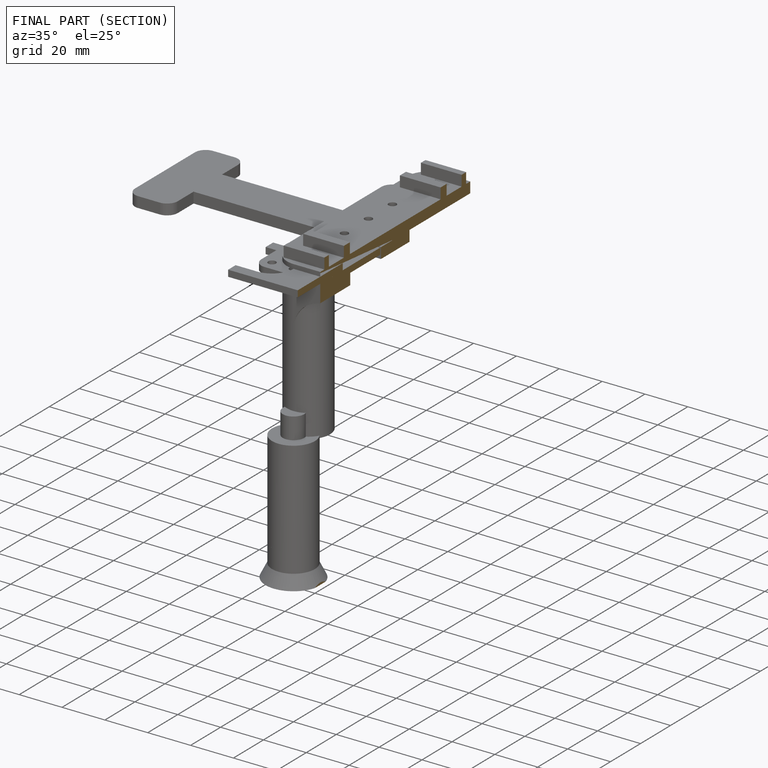
[diagram: finished part — half-section view (interior)]
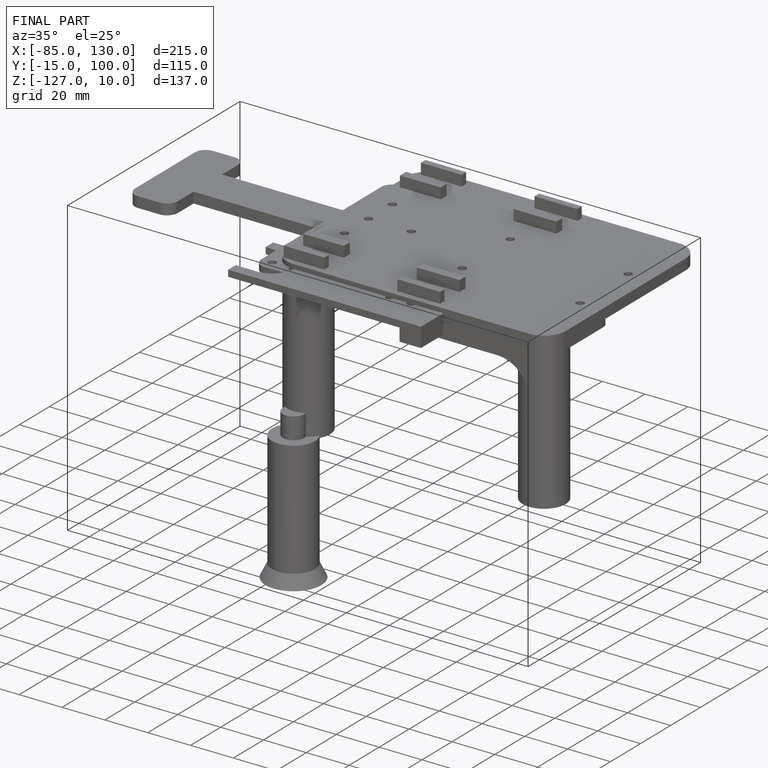
[diagram: finished part — iso view with bounding-box wireframe]
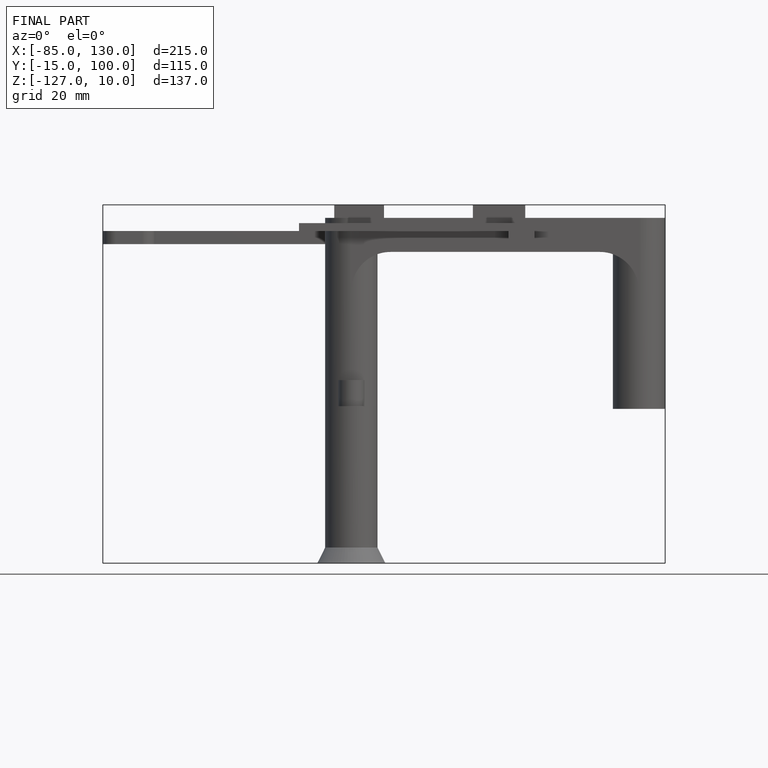
[diagram: finished part — front view with bounding-box wireframe]
